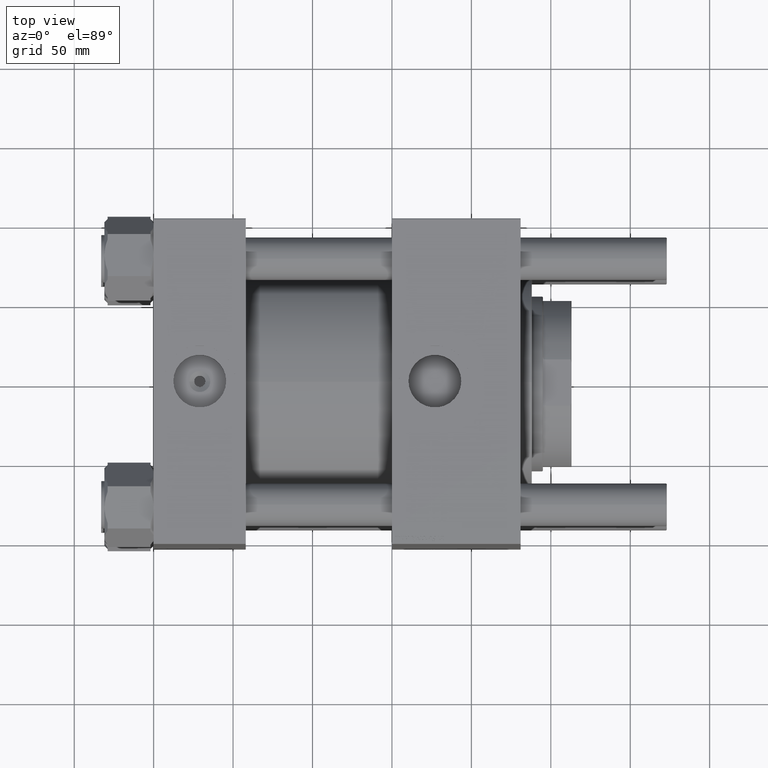
[diagram: clean part render]
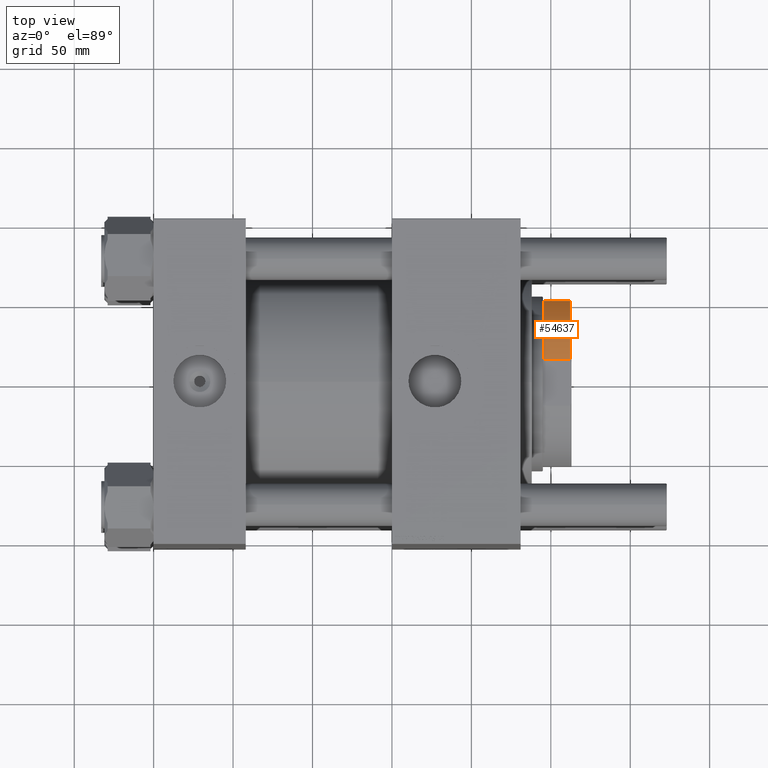
[diagram: same view with one face highlighted and labeled with its STEP entity id]
A machine part, top view. The second image highlights one B-rep face of the part: STEP entity #54637.
In plain terms, the highlighted cylindrical surface (partial cylindrical patch) has radius 54 mm, axis along (1, 0, 0).
Its self-contained STEP definition (entity closure, byte-faithful):
#1690 = CARTESIAN_POINT ( 'NONE',  ( -14.56021977856099348, -52.00000000000001421, 204.4999999999998295 ) ) ;
#1846 = VERTEX_POINT ( 'NONE', #49245 ) ;
#1936 = EDGE_CURVE ( 'NONE', #1846, #3424, #51262, .T. ) ;
#3424 = VERTEX_POINT ( 'NONE', #15420 ) ;
#3578 = EDGE_CURVE ( 'NONE', #15677, #3424, #24007, .T. ) ;
#3880 = DIRECTION ( 'NONE',  ( -1.000000000000000000, 0.000000000000000000, 0.000000000000000000 ) ) ;
#4450 = CARTESIAN_POINT ( 'NONE',  ( 0.000000000000000000, 0.000000000000000000, 187.5000000000000000 ) ) ;
#5071 = AXIS2_PLACEMENT_3D ( 'NONE', #4450, #22111, #3880 ) ;
#5081 = CARTESIAN_POINT ( 'NONE',  ( 0.000000000000000000, 0.000000000000000000, -0.001000000000001000089 ) ) ;
#8563 = DIRECTION ( 'NONE',  ( -0.000000000000000000, -0.000000000000000000, 1.000000000000000000 ) ) ;
#9459 = DIRECTION ( 'NONE',  ( -0.000000000000000000, -0.000000000000000000, 1.000000000000000000 ) ) ;
#10451 = ORIENTED_EDGE ( 'NONE', *, *, #1936, .F. ) ;
#13352 = DIRECTION ( 'NONE',  ( -0.000000000000000000, -0.000000000000000000, -1.000000000000000000 ) ) ;
#13516 = LINE ( 'NONE', #31189, #53668 ) ;
#13645 = EDGE_CURVE ( 'NONE', #39271, #15677, #13516, .T. ) ;
#14603 = ORIENTED_EDGE ( 'NONE', *, *, #55968, .T. ) ;
#15420 = CARTESIAN_POINT ( 'NONE',  ( -52.00000000000001421, -14.56021977856097394, 204.4999999999998295 ) ) ;
#15677 = VERTEX_POINT ( 'NONE', #1690 ) ;
#17545 = VECTOR ( 'NONE', #28692, 1000.000000000000000 ) ;
#17811 = DIRECTION ( 'NONE',  ( 1.000000000000000000, 0.000000000000000000, 0.000000000000000000 ) ) ;
#22111 = DIRECTION ( 'NONE',  ( -0.000000000000000000, -0.000000000000000000, 1.000000000000000000 ) ) ;
#23247 = AXIS2_PLACEMENT_3D ( 'NONE', #53285, #13352, #35371 ) ;
#24007 = CIRCLE ( 'NONE', #23247, 54.00000000000000000 ) ;
#24504 = CIRCLE ( 'NONE', #5071, 54.00000000000000000 ) ;
#28692 = DIRECTION ( 'NONE',  ( -0.000000000000000000, -0.000000000000000000, 1.000000000000000000 ) ) ;
#29059 = AXIS2_PLACEMENT_3D ( 'NONE', #5081, #8563, #17811 ) ;
#29994 = ORIENTED_EDGE ( 'NONE', *, *, #3578, .T. ) ;
#30569 = FACE_OUTER_BOUND ( 'NONE', #49453, .T. ) ;
#31189 = CARTESIAN_POINT ( 'NONE',  ( -14.56021977856099348, -52.00000000000001421, -0.001000000000001000089 ) ) ;
#35371 = DIRECTION ( 'NONE',  ( 1.000000000000000000, 0.000000000000000000, 0.000000000000000000 ) ) ;
#39271 = VERTEX_POINT ( 'NONE', #46358 ) ;
#44950 = ORIENTED_EDGE ( 'NONE', *, *, #13645, .T. ) ;
#46358 = CARTESIAN_POINT ( 'NONE',  ( -14.56021977856099348, -52.00000000000001421, 187.5000000000000000 ) ) ;
#48205 = CYLINDRICAL_SURFACE ( 'NONE', #29059, 54.00000000000000000 ) ;
#49245 = CARTESIAN_POINT ( 'NONE',  ( -52.00000000000002842, -14.56021977856097749, 187.5000000000000000 ) ) ;
#49453 = EDGE_LOOP ( 'NONE', ( #44950, #29994, #10451, #14603 ) ) ;
#51262 = LINE ( 'NONE', #54710, #17545 ) ;
#53285 = CARTESIAN_POINT ( 'NONE',  ( 0.000000000000000000, 0.000000000000000000, 204.4999999999998863 ) ) ;
#53668 = VECTOR ( 'NONE', #9459, 1000.000000000000000 ) ;
#54637 = ADVANCED_FACE ( 'NONE', ( #30569 ), #48205, .T. ) ;
#54710 = CARTESIAN_POINT ( 'NONE',  ( -52.00000000000001421, -14.56021977856097394, -0.001000000000001000089 ) ) ;
#55968 = EDGE_CURVE ( 'NONE', #1846, #39271, #24504, .T. ) ;